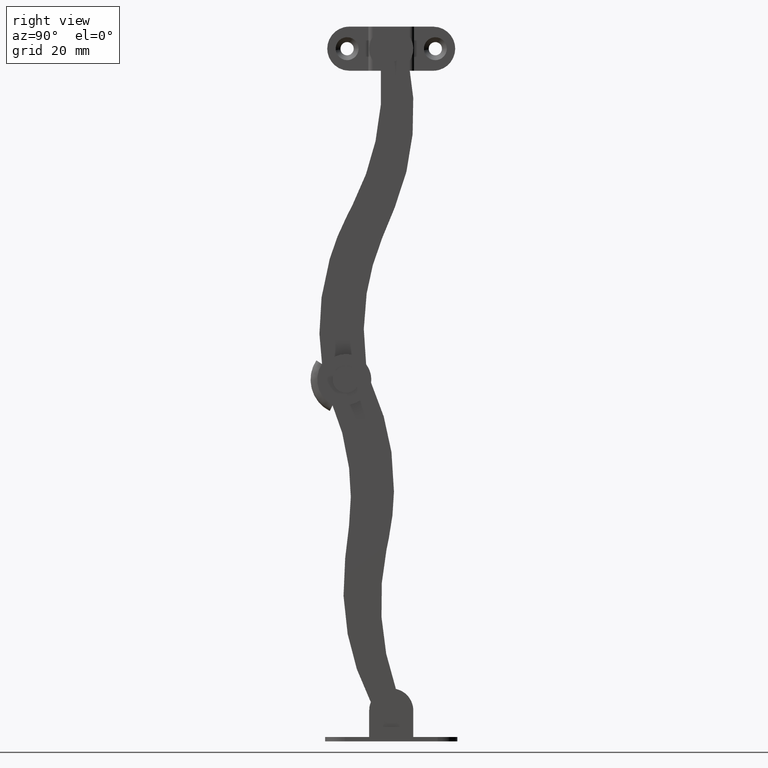
[diagram: clean part render]
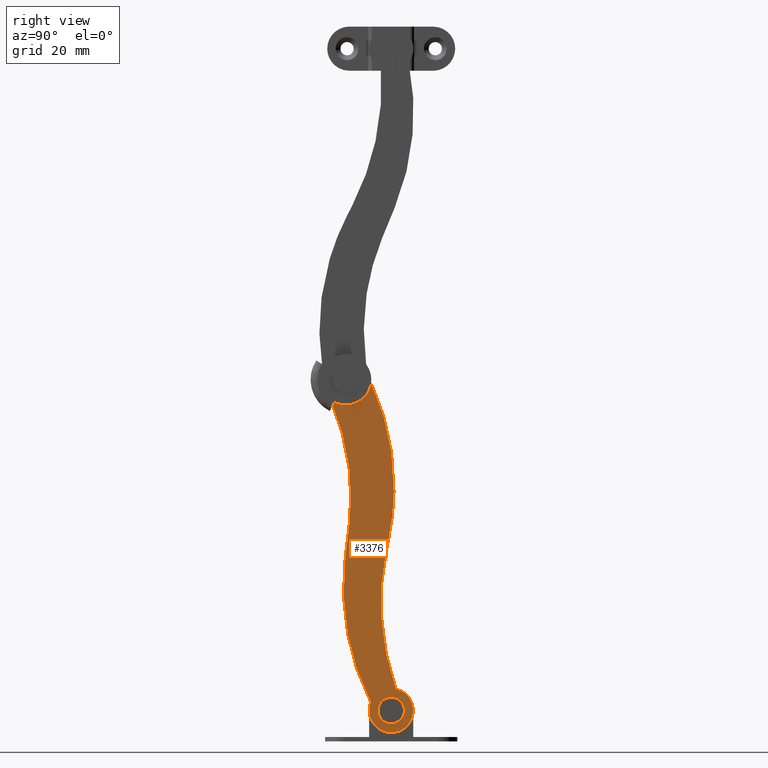
[diagram: same view with one face highlighted and labeled with its STEP entity id]
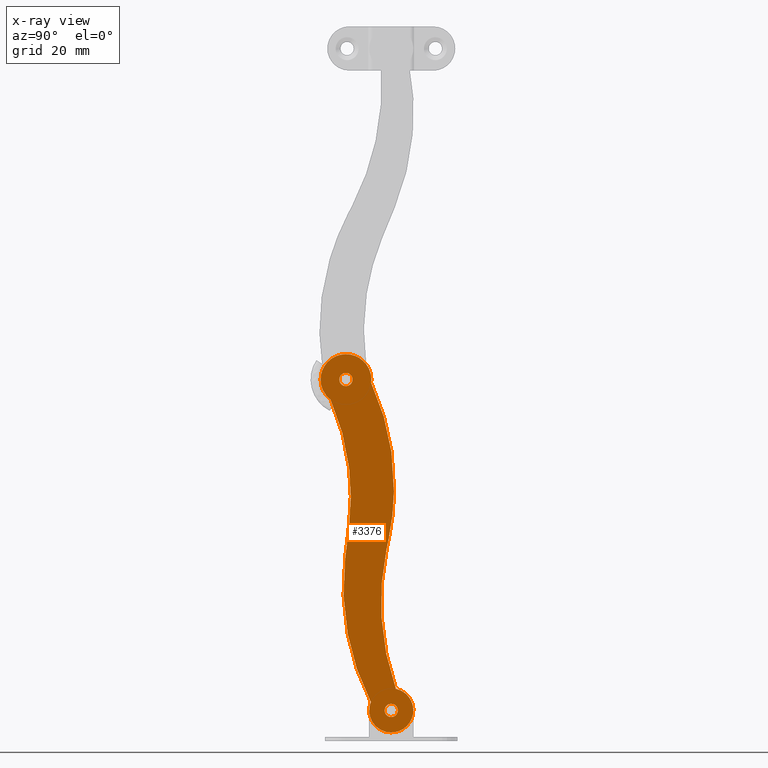
[diagram: x-ray of the same camera — body ghosted, the highlighted face saturated]
A machine part, right view. The second image highlights one B-rep face of the part: STEP entity #3376.
The next image is the same camera in x-ray: the body ghosted, the highlighted face saturated — about 0% of this face is hidden behind the body in this view.
In plain terms, the highlighted face is a freeform B-spline surface patch.
Its self-contained STEP definition (entity closure, byte-faithful):
#2897=CARTESIAN_POINT('',(7.0,0.403521157791227,-76.444803058393148));
#2898=VERTEX_POINT('',#2897);
#2899=CARTESIAN_POINT('',(7.0,-1.408431378464703,-75.515415047259779));
#2900=VERTEX_POINT('',#2899);
#2901=CARTESIAN_POINT('',(7.0,0.403521157791227,-76.444803058393148));
#2902=CARTESIAN_POINT('',(6.999999999999998,-0.932013830478177,-76.817584900659398));
#2903=CARTESIAN_POINT('',(7.0,-1.408431378464703,-75.515415047259779));
#2911=(BOUNDED_CURVE()B_SPLINE_CURVE(2,(#2901,#2902,#2903),.UNSPECIFIED.,.F.,.U.)B_SPLINE_CURVE_WITH_KNOTS((3,3),(0.0,0.236331300606632),.UNSPECIFIED.)CURVE()GEOMETRIC_REPRESENTATION_ITEM()RATIONAL_B_SPLINE_CURVE((1.0,0.723120658635816,0.969723356117274))REPRESENTATION_ITEM(''));
#2912=EDGE_CURVE('',#2898,#2900,#2911,.T.);
#2914=CARTESIAN_POINT('',(7.0,1.408927443977981,-74.484643847815221));
#2915=VERTEX_POINT('',#2914);
#2916=CARTESIAN_POINT('',(7.0,1.408927443977981,-74.484643847815221));
#2917=CARTESIAN_POINT('',(7.0,1.429176999345562,-74.539991012620234));
#2918=CARTESIAN_POINT('',(7.0,1.445021643612279,-74.596756322502912));
#2919=CARTESIAN_POINT('',(6.999999999999999,1.848294768646866,-76.041529933358561));
#2920=CARTESIAN_POINT('',(7.0,0.403521157791227,-76.444803058393148));
#2928=(BOUNDED_CURVE()B_SPLINE_CURVE(2,(#2916,#2917,#2918,#2919,#2920),.UNSPECIFIED.,.F.,.U.)B_SPLINE_CURVE_WITH_KNOTS((3,2,3),(0.736331300606630,0.750000000000000,1.0),.UNSPECIFIED.)CURVE()GEOMETRIC_REPRESENTATION_ITEM()RATIONAL_B_SPLINE_CURVE((0.969723356117270,0.983986122550730,1.0,0.707106781186548,1.0))REPRESENTATION_ITEM(''));
#2929=EDGE_CURVE('',#2915,#2898,#2928,.T.);
#2996=CARTESIAN_POINT('',(7.0,-0.403025092277947,-73.555255836681866));
#2997=VERTEX_POINT('',#2996);
#2998=CARTESIAN_POINT('',(7.0,-1.408431378464703,-75.515415047259779));
#2999=CARTESIAN_POINT('',(7.000000000000001,-1.428680933832283,-75.460067882454766));
#3000=CARTESIAN_POINT('',(7.0,-1.444525578098998,-75.403302572572088));
#3001=CARTESIAN_POINT('',(6.999999999999999,-1.847798703133585,-73.958528961716453));
#3002=CARTESIAN_POINT('',(7.0,-0.403025092277947,-73.555255836681866));
#3010=(BOUNDED_CURVE()B_SPLINE_CURVE(2,(#2998,#2999,#3000,#3001,#3002),.UNSPECIFIED.,.F.,.U.)B_SPLINE_CURVE_WITH_KNOTS((3,2,3),(0.236331300606632,0.250000000000000,0.500000000000000),.UNSPECIFIED.)CURVE()GEOMETRIC_REPRESENTATION_ITEM()RATIONAL_B_SPLINE_CURVE((0.969723356117274,0.983986122550732,1.0,0.707106781186548,1.0))REPRESENTATION_ITEM(''));
#3011=EDGE_CURVE('',#2900,#2997,#3010,.T.);
#3045=CARTESIAN_POINT('',(7.0,-0.403025092277947,-73.555255836681866));
#3046=CARTESIAN_POINT('',(6.999999999999999,0.932509895991437,-73.182473994415631));
#3047=CARTESIAN_POINT('',(7.0,1.408927443977982,-74.484643847815221));
#3055=(BOUNDED_CURVE()B_SPLINE_CURVE(2,(#3045,#3046,#3047),.UNSPECIFIED.,.F.,.U.)B_SPLINE_CURVE_WITH_KNOTS((3,3),(0.500000000000000,0.736331300606629),.UNSPECIFIED.)CURVE()GEOMETRIC_REPRESENTATION_ITEM()RATIONAL_B_SPLINE_CURVE((1.0,0.723120658635819,0.969723356117268))REPRESENTATION_ITEM(''));
#3056=EDGE_CURVE('',#2997,#2915,#3055,.T.);
#3079=CARTESIAN_POINT('',(7.0,-9.867447874306553,-1.444790317906047));
#3080=VERTEX_POINT('',#3079);
#3081=CARTESIAN_POINT('',(7.0,-11.679400410562479,-0.515402306772695));
#3082=VERTEX_POINT('',#3081);
#3083=CARTESIAN_POINT('',(7.0,-9.867447874306553,-1.444790317906047));
#3084=CARTESIAN_POINT('',(6.999999999999999,-11.202982862575935,-1.817572160172295));
#3085=CARTESIAN_POINT('',(7.000000000000001,-11.679400410562481,-0.515402306772695));
#3093=(BOUNDED_CURVE()B_SPLINE_CURVE(2,(#3083,#3084,#3085),.UNSPECIFIED.,.F.,.U.)B_SPLINE_CURVE_WITH_KNOTS((3,3),(0.0,0.236331300606629),.UNSPECIFIED.)CURVE()GEOMETRIC_REPRESENTATION_ITEM()RATIONAL_B_SPLINE_CURVE((1.0,0.723120658635819,0.969723356117268))REPRESENTATION_ITEM(''));
#3094=EDGE_CURVE('',#3080,#3082,#3093,.T.);
#3096=CARTESIAN_POINT('',(7.0,-8.862041588119801,0.515368892671879));
#3097=VERTEX_POINT('',#3096);
#3098=CARTESIAN_POINT('',(7.0,-8.862041588119801,0.515368892671879));
#3099=CARTESIAN_POINT('',(7.0,-8.841792032752219,0.460021727866869));
#3100=CARTESIAN_POINT('',(7.0,-8.825947388485501,0.403256417984179));
#3101=CARTESIAN_POINT('',(6.999999999999999,-8.422674263450915,-1.041517192871460));
#3102=CARTESIAN_POINT('',(7.0,-9.867447874306553,-1.444790317906047));
#3110=(BOUNDED_CURVE()B_SPLINE_CURVE(2,(#3098,#3099,#3100,#3101,#3102),.UNSPECIFIED.,.F.,.U.)B_SPLINE_CURVE_WITH_KNOTS((3,2,3),(0.736331300606629,0.750000000000000,1.0),.UNSPECIFIED.)CURVE()GEOMETRIC_REPRESENTATION_ITEM()RATIONAL_B_SPLINE_CURVE((0.969723356117268,0.983986122550729,1.0,0.707106781186548,1.0))REPRESENTATION_ITEM(''));
#3111=EDGE_CURVE('',#3097,#3080,#3110,.T.);
#3178=CARTESIAN_POINT('',(7.0,-10.673994124375730,1.444756903805230));
#3179=VERTEX_POINT('',#3178);
#3180=CARTESIAN_POINT('',(7.000000000000001,-11.679400410562481,-0.515402306772695));
#3181=CARTESIAN_POINT('',(7.0,-11.699649965930066,-0.460055141967685));
#3182=CARTESIAN_POINT('',(7.0,-11.715494610196780,-0.403289832084996));
#3183=CARTESIAN_POINT('',(6.999999999999999,-12.118767735231366,1.041483778770643));
#3184=CARTESIAN_POINT('',(7.0,-10.673994124375730,1.444756903805230));
#3192=(BOUNDED_CURVE()B_SPLINE_CURVE(2,(#3180,#3181,#3182,#3183,#3184),.UNSPECIFIED.,.F.,.U.)B_SPLINE_CURVE_WITH_KNOTS((3,2,3),(0.236331300606629,0.250000000000000,0.500000000000000),.UNSPECIFIED.)CURVE()GEOMETRIC_REPRESENTATION_ITEM()RATIONAL_B_SPLINE_CURVE((0.969723356117268,0.983986122550729,1.0,0.707106781186548,1.0))REPRESENTATION_ITEM(''));
#3193=EDGE_CURVE('',#3082,#3179,#3192,.T.);
#3227=CARTESIAN_POINT('',(7.0,-10.673994124375730,1.444756903805230));
#3228=CARTESIAN_POINT('',(6.999999999999999,-9.338459136106344,1.817538746071479));
#3229=CARTESIAN_POINT('',(7.0,-8.862041588119801,0.515368892671879));
#3237=(BOUNDED_CURVE()B_SPLINE_CURVE(2,(#3227,#3228,#3229),.UNSPECIFIED.,.F.,.U.)B_SPLINE_CURVE_WITH_KNOTS((3,3),(0.500000000000000,0.736331300606629),.UNSPECIFIED.)CURVE()GEOMETRIC_REPRESENTATION_ITEM()RATIONAL_B_SPLINE_CURVE((1.0,0.723120658635819,0.969723356117268))REPRESENTATION_ITEM(''));
#3238=EDGE_CURVE('',#3179,#3097,#3237,.T.);
#3243=CARTESIAN_POINT('',(7.0,-28.776395042068462,5.250376667496973));
#3244=CARTESIAN_POINT('',(7.0,-6.154348481514079,11.564766231789919));
#3245=CARTESIAN_POINT('',(7.0,-3.421558882064816,-85.586319153480076));
#3246=CARTESIAN_POINT('',(7.0,19.200487678489559,-79.271929589187138));
#3247=B_SPLINE_SURFACE_WITH_KNOTS('',1,1,((#3243,#3245),(#3244,#3246)),.UNSPECIFIED.,.F.,.F.,.U.,(2,2),(2,2),(0.0,23.486773004343149),(0.0,94.308923354968570),.UNSPECIFIED.);
#3248=CARTESIAN_POINT('',(7.0,-9.559482479725562,-33.124124093669302));
#3249=VERTEX_POINT('',#3248);
#3250=CARTESIAN_POINT('',(7.0,-10.437690406617280,-40.478668749997397));
#3251=VERTEX_POINT('',#3250);
#3252=CARTESIAN_POINT('',(7.0,-9.559482479725562,-33.124124093669302));
#3253=CARTESIAN_POINT('',(7.0,-10.437690406617280,-40.478668749997397));
#3254=QUASI_UNIFORM_CURVE('',1,(#3252,#3253),.UNSPECIFIED.,.F.,.U.);
#3255=EDGE_CURVE('',#3249,#3251,#3254,.T.);
#3256=ORIENTED_EDGE('',*,*,#3255,.T.);
#3257=CARTESIAN_POINT('',(7.0,-4.629121033998530,-73.110624017767307));
#3258=VERTEX_POINT('',#3257);
#3259=CARTESIAN_POINT('',(7.0,-4.629121033998470,-73.110624017767265));
#3260=CARTESIAN_POINT('',(7.0,-12.491368257209368,-57.677176073143151));
#3261=CARTESIAN_POINT('',(7.0,-10.437690406617250,-40.478668749997411));
#3269=(BOUNDED_CURVE()B_SPLINE_CURVE(2,(#3259,#3260,#3261),.UNSPECIFIED.,.F.,.U.)CURVE()GEOMETRIC_REPRESENTATION_ITEM()QUASI_UNIFORM_CURVE()RATIONAL_B_SPLINE_CURVE((1.0,0.956800705288628,1.0))REPRESENTATION_ITEM(''));
#3270=EDGE_CURVE('',#3258,#3251,#3269,.T.);
#3271=ORIENTED_EDGE('',*,*,#3270,.F.);
#3272=CARTESIAN_POINT('',(7.0,1.057072775576156,-70.113010132736292));
#3273=VERTEX_POINT('',#3272);
#3274=CARTESIAN_POINT('',(7.0,1.057072775576179,-70.113010132736207));
#3275=CARTESIAN_POINT('',(7.000000000000001,4.478981024011150,-70.853070888667858));
#3276=CARTESIAN_POINT('',(7.0,4.953928755523163,-74.321726339344536));
#3277=CARTESIAN_POINT('',(7.000000000000001,5.428876487035177,-77.790381790021200));
#3278=CARTESIAN_POINT('',(7.0,2.331855690312760,-79.423050821958242));
#3279=CARTESIAN_POINT('',(7.000000000000001,-0.765165106409658,-81.055719853895297));
#3280=CARTESIAN_POINT('',(7.0,-3.358626366441367,-78.703889784376642));
#3281=CARTESIAN_POINT('',(7.000000000000001,-5.952087626473073,-76.352059714857972));
#3282=CARTESIAN_POINT('',(7.0,-4.629121033998662,-73.110624017767250));
#3290=(BOUNDED_CURVE()B_SPLINE_CURVE(2,(#3274,#3275,#3276,#3277,#3278,#3279,#3280,#3281,#3282),.UNSPECIFIED.,.F.,.U.)B_SPLINE_CURVE_WITH_KNOTS((3,2,2,2,3),(0.0,0.250000000000000,0.500000000000000,0.750000000000000,1.0),.UNSPECIFIED.)CURVE()GEOMETRIC_REPRESENTATION_ITEM()RATIONAL_B_SPLINE_CURVE((1.0,0.819153351722276,1.0,0.819153351722276,1.0,0.819153351722276,1.0,0.819153351722276,1.0))REPRESENTATION_ITEM(''));
#3291=EDGE_CURVE('',#3273,#3258,#3290,.T.);
#3292=ORIENTED_EDGE('',*,*,#3291,.F.);
#3293=CARTESIAN_POINT('',(7.0,-1.066427248025954,-38.490128241870352));
#3294=VERTEX_POINT('',#3293);
#3295=CARTESIAN_POINT('',(7.0,1.057072775576214,-70.113010132736264));
#3296=CARTESIAN_POINT('',(7.0,-4.413725891826682,-54.597640081681142));
#3297=CARTESIAN_POINT('',(7.0,-1.066427248025886,-38.490128241870359));
#3305=(BOUNDED_CURVE()B_SPLINE_CURVE(2,(#3295,#3296,#3297),.UNSPECIFIED.,.F.,.U.)CURVE()GEOMETRIC_REPRESENTATION_ITEM()QUASI_UNIFORM_CURVE()RATIONAL_B_SPLINE_CURVE((1.0,0.963250642647689,1.0))REPRESENTATION_ITEM(''));
#3306=EDGE_CURVE('',#3273,#3294,#3305,.T.);
#3307=ORIENTED_EDGE('',*,*,#3306,.T.);
#3308=CARTESIAN_POINT('',(7.0,-0.566645806659082,-36.085133350758063));
#3309=VERTEX_POINT('',#3308);
#3310=CARTESIAN_POINT('',(7.0,-1.066427248025954,-38.490128241870352));
#3311=CARTESIAN_POINT('',(7.0,-0.566645806659082,-36.085133350758063));
#3312=QUASI_UNIFORM_CURVE('',1,(#3310,#3311),.UNSPECIFIED.,.F.,.U.);
#3313=EDGE_CURVE('',#3294,#3309,#3312,.T.);
#3314=ORIENTED_EDGE('',*,*,#3313,.T.);
#3315=CARTESIAN_POINT('',(7.0,-4.566086293324210,-0.720879295139995));
#3316=VERTEX_POINT('',#3315);
#3317=CARTESIAN_POINT('',(7.0,-4.566086293324210,-0.720879295139995));
#3318=CARTESIAN_POINT('',(7.0,3.244437192517699,-17.745846646638945));
#3319=CARTESIAN_POINT('',(7.0,-0.566645806659098,-36.085133350758063));
#3327=(BOUNDED_CURVE()B_SPLINE_CURVE(2,(#3317,#3318,#3319),.UNSPECIFIED.,.F.,.U.)CURVE()GEOMETRIC_REPRESENTATION_ITEM()QUASI_UNIFORM_CURVE()RATIONAL_B_SPLINE_CURVE((1.0,0.950016428060900,1.0))REPRESENTATION_ITEM(''));
#3328=EDGE_CURVE('',#3316,#3309,#3327,.T.);
#3329=ORIENTED_EDGE('',*,*,#3328,.F.);
#3330=CARTESIAN_POINT('',(7.0,-13.747324764721579,-4.579943153898929));
#3331=VERTEX_POINT('',#3330);
#3332=CARTESIAN_POINT('',(7.0,-13.747324764721579,-4.579943153898931));
#3333=CARTESIAN_POINT('',(7.0,-17.590339045115737,-1.662726453438017));
#3334=CARTESIAN_POINT('',(7.0,-15.384774190890351,2.628473345052757));
#3335=CARTESIAN_POINT('',(7.0,-13.179209336664966,6.919673143543530));
#3336=CARTESIAN_POINT('',(7.0,-8.570210073648724,5.492775168817523));
#3337=CARTESIAN_POINT('',(7.0,-3.961210810632477,4.065877194091514));
#3338=CARTESIAN_POINT('',(7.0,-4.566086293324217,-0.720879295139993));
#3346=(BOUNDED_CURVE()B_SPLINE_CURVE(2,(#3332,#3333,#3334,#3335,#3336,#3337,#3338),.UNSPECIFIED.,.F.,.U.)B_SPLINE_CURVE_WITH_KNOTS((3,2,2,3),(0.0,0.333333333333333,0.666666666666667,1.0),.UNSPECIFIED.)CURVE()GEOMETRIC_REPRESENTATION_ITEM()RATIONAL_B_SPLINE_CURVE((1.0,0.766044468813316,1.0,0.766044468813316,1.0,0.766044468813316,1.0))REPRESENTATION_ITEM(''));
#3347=EDGE_CURVE('',#3331,#3316,#3346,.T.);
#3348=ORIENTED_EDGE('',*,*,#3347,.F.);
#3349=CARTESIAN_POINT('',(7.0,-13.747324764721631,-4.579943153898928));
#3350=CARTESIAN_POINT('',(7.000000000000001,-7.774471125964571,-18.282938382874754));
#3351=CARTESIAN_POINT('',(7.0,-9.559482479725553,-33.124124093669302));
#3359=(BOUNDED_CURVE()B_SPLINE_CURVE(2,(#3349,#3350,#3351),.UNSPECIFIED.,.F.,.U.)CURVE()GEOMETRIC_REPRESENTATION_ITEM()QUASI_UNIFORM_CURVE()RATIONAL_B_SPLINE_CURVE((1.0,0.964994399481614,1.0))REPRESENTATION_ITEM(''));
#3360=EDGE_CURVE('',#3331,#3249,#3359,.T.);
#3361=ORIENTED_EDGE('',*,*,#3360,.T.);
#3362=EDGE_LOOP('',(#3256,#3271,#3292,#3307,#3314,#3329,#3348,#3361));
#3363=FACE_OUTER_BOUND('',#3362,.T.);
#3364=ORIENTED_EDGE('',*,*,#3238,.T.);
#3365=ORIENTED_EDGE('',*,*,#3111,.T.);
#3366=ORIENTED_EDGE('',*,*,#3094,.T.);
#3367=ORIENTED_EDGE('',*,*,#3193,.T.);
#3368=EDGE_LOOP('',(#3364,#3365,#3366,#3367));
#3369=FACE_BOUND('',#3368,.T.);
#3370=ORIENTED_EDGE('',*,*,#3056,.T.);
#3371=ORIENTED_EDGE('',*,*,#2929,.T.);
#3372=ORIENTED_EDGE('',*,*,#2912,.T.);
#3373=ORIENTED_EDGE('',*,*,#3011,.T.);
#3374=EDGE_LOOP('',(#3370,#3371,#3372,#3373));
#3375=FACE_BOUND('',#3374,.T.);
#3376=ADVANCED_FACE('',(#3363,#3369,#3375),#3247,.F.);